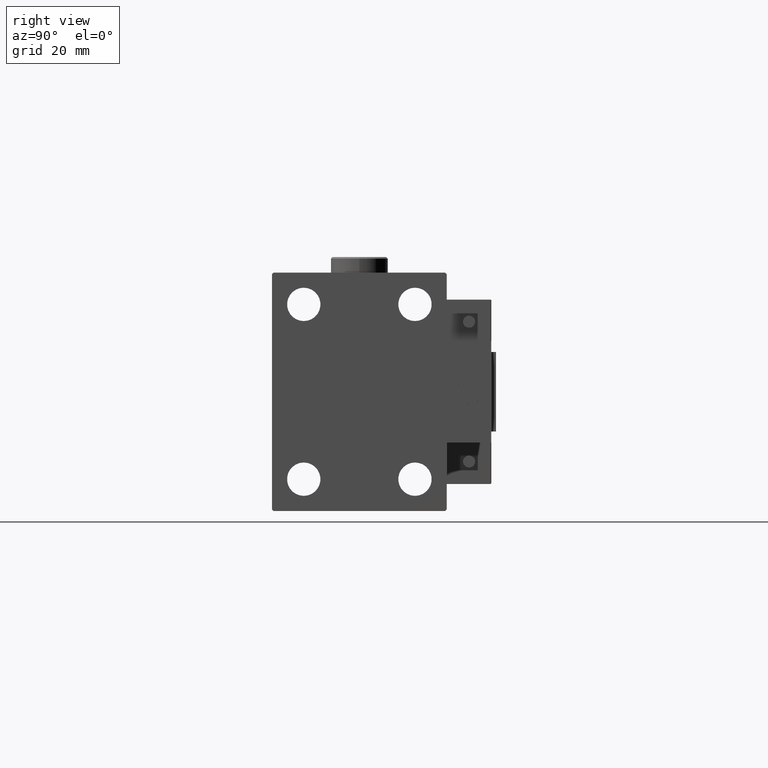
[diagram: clean part render]
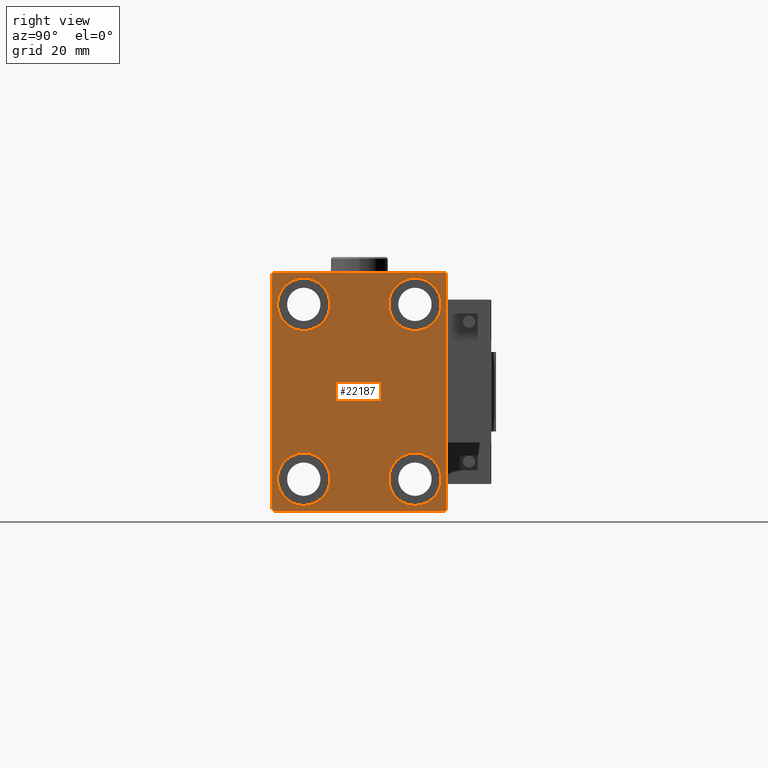
[diagram: same view with one face highlighted and labeled with its STEP entity id]
A machine part, right view. The second image highlights one B-rep face of the part: STEP entity #22187.
In plain terms, the highlighted planar face has unit normal (1, 0, 0).
Its self-contained STEP definition (entity closure, byte-faithful):
#264 = DIRECTION ( 'NONE',  ( -1.000000000000000000, -0.000000000000000000, -0.000000000000000000 ) ) ;
#634 = LINE ( 'NONE', #17320, #4117 ) ;
#788 = EDGE_LOOP ( 'NONE', ( #32483, #24893 ) ) ;
#1033 = VERTEX_POINT ( 'NONE', #39517 ) ;
#1921 = VERTEX_POINT ( 'NONE', #11361 ) ;
#2577 = VECTOR ( 'NONE', #9474, 1000.000000000000114 ) ;
#2788 = ORIENTED_EDGE ( 'NONE', *, *, #23715, .T. ) ;
#3029 = CARTESIAN_POINT ( 'NONE',  ( 105.0000000000000000, 17.49999999999999645, -27.50000000000000355 ) ) ;
#3316 = CARTESIAN_POINT ( 'NONE',  ( 105.0000000000000000, 17.49999999999999645, -19.25000000000000355 ) ) ;
#3392 = VECTOR ( 'NONE', #12245, 1000.000000000000000 ) ;
#3738 = CARTESIAN_POINT ( 'NONE',  ( 105.0000000000000000, -17.50000000000000355, -35.75000000000000711 ) ) ;
#3873 = EDGE_CURVE ( 'NONE', #7758, #50445, #31714, .T. ) ;
#4016 = FACE_OUTER_BOUND ( 'NONE', #49084, .T. ) ;
#4117 = VECTOR ( 'NONE', #14087, 1000.000000000000000 ) ;
#4242 = ORIENTED_EDGE ( 'NONE', *, *, #49967, .T. ) ;
#4422 = CARTESIAN_POINT ( 'NONE',  ( 105.0000000000000000, 17.50000000000000355, 35.74999999999999289 ) ) ;
#4572 = ORIENTED_EDGE ( 'NONE', *, *, #19563, .T. ) ;
#4879 = AXIS2_PLACEMENT_3D ( 'NONE', #41126, #28232, #24208 ) ;
#5010 = ORIENTED_EDGE ( 'NONE', *, *, #21101, .T. ) ;
#6058 = CARTESIAN_POINT ( 'NONE',  ( 105.0000000000000000, 17.49999999999999645, -27.50000000000000355 ) ) ;
#7070 = DIRECTION ( 'NONE',  ( -1.000000000000000000, -0.000000000000000000, -0.000000000000000000 ) ) ;
#7284 = DIRECTION ( 'NONE',  ( -1.000000000000000000, -0.000000000000000000, -0.000000000000000000 ) ) ;
#7758 = VERTEX_POINT ( 'NONE', #16835 ) ;
#7795 = PLANE ( 'NONE',  #4879 ) ;
#8126 = LINE ( 'NONE', #50035, #22632 ) ;
#8431 = CIRCLE ( 'NONE', #52220, 8.250000000000000000 ) ;
#8912 = DIRECTION ( 'NONE',  ( 0.000000000000000000, 1.000000000000000000, 0.000000000000000000 ) ) ;
#9250 = VERTEX_POINT ( 'NONE', #3316 ) ;
#9314 = CARTESIAN_POINT ( 'NONE',  ( 105.0000000000000000, 27.49999999999999645, 37.50000000000000711 ) ) ;
#9474 = DIRECTION ( 'NONE',  ( 0.000000000000000000, -0.7071067811865474617, -0.7071067811865474617 ) ) ;
#9491 = AXIS2_PLACEMENT_3D ( 'NONE', #43740, #27351, #19807 ) ;
#10124 = CARTESIAN_POINT ( 'NONE',  ( 105.0000000000000000, 17.50000000000000355, 27.49999999999999645 ) ) ;
#10790 = DIRECTION ( 'NONE',  ( 0.000000000000000000, 0.000000000000000000, 1.000000000000000000 ) ) ;
#10959 = AXIS2_PLACEMENT_3D ( 'NONE', #6058, #42655, #51233 ) ;
#10997 = ORIENTED_EDGE ( 'NONE', *, *, #3873, .T. ) ;
#11361 = CARTESIAN_POINT ( 'NONE',  ( 105.0000000000000000, 26.99999999999999645, 37.50000000000000711 ) ) ;
#11560 = CARTESIAN_POINT ( 'NONE',  ( 105.0000000000000000, 27.49999999999999645, 37.00000000000001421 ) ) ;
#11806 = CIRCLE ( 'NONE', #10959, 8.250000000000000000 ) ;
#11844 = CARTESIAN_POINT ( 'NONE',  ( 105.0000000000000000, -17.49999999999999645, 27.49999999999999645 ) ) ;
#12245 = DIRECTION ( 'NONE',  ( 0.000000000000000000, 0.000000000000000000, -1.000000000000000000 ) ) ;
#12357 = FACE_BOUND ( 'NONE', #42875, .T. ) ;
#13220 = EDGE_LOOP ( 'NONE', ( #13558, #4572 ) ) ;
#13558 = ORIENTED_EDGE ( 'NONE', *, *, #48207, .T. ) ;
#14087 = DIRECTION ( 'NONE',  ( -0.000000000000000000, -0.7071067811865524577, 0.7071067811865426878 ) ) ;
#14120 = CARTESIAN_POINT ( 'NONE',  ( 105.0000000000000000, -32.25000000000038369, -32.24999999999949551 ) ) ;
#14176 = CIRCLE ( 'NONE', #42511, 8.249999999999992895 ) ;
#15321 = VECTOR ( 'NONE', #30517, 1000.000000000000000 ) ;
#15360 = CARTESIAN_POINT ( 'NONE',  ( 105.0000000000000000, 17.50000000000000355, 27.49999999999999645 ) ) ;
#16428 = DIRECTION ( 'NONE',  ( 0.000000000000000000, 0.000000000000000000, 1.000000000000000000 ) ) ;
#16835 = CARTESIAN_POINT ( 'NONE',  ( 105.0000000000000000, 26.99999999999998934, -37.50000000000000000 ) ) ;
#17320 = CARTESIAN_POINT ( 'NONE',  ( 105.0000000000000000, 32.24999999999981526, 32.25000000000025580 ) ) ;
#17907 = LINE ( 'NONE', #9314, #42703 ) ;
#17979 = AXIS2_PLACEMENT_3D ( 'NONE', #10124, #43197, #51251 ) ;
#19563 = EDGE_CURVE ( 'NONE', #9250, #45723, #11806, .T. ) ;
#19807 = DIRECTION ( 'NONE',  ( 0.000000000000000000, 0.000000000000000000, 1.000000000000000000 ) ) ;
#20196 = ORIENTED_EDGE ( 'NONE', *, *, #22531, .T. ) ;
#20517 = VERTEX_POINT ( 'NONE', #20581 ) ;
#20581 = CARTESIAN_POINT ( 'NONE',  ( 105.0000000000000000, -27.00000000000001776, -37.50000000000000000 ) ) ;
#20661 = VERTEX_POINT ( 'NONE', #42604 ) ;
#20697 = FACE_BOUND ( 'NONE', #788, .T. ) ;
#20715 = DIRECTION ( 'NONE',  ( -1.000000000000000000, -0.000000000000000000, -0.000000000000000000 ) ) ;
#20972 = EDGE_CURVE ( 'NONE', #50445, #42923, #36537, .T. ) ;
#21101 = EDGE_CURVE ( 'NONE', #42667, #40083, #8431, .T. ) ;
#21683 = DIRECTION ( 'NONE',  ( 0.000000000000000000, -1.000000000000000000, -1.261617073437677999E-16 ) ) ;
#22187 = ADVANCED_FACE ( 'NONE', ( #25266, #49974, #20697, #12357, #4016 ), #7795, .T. ) ;
#22531 = EDGE_CURVE ( 'NONE', #1921, #45963, #17907, .T. ) ;
#22632 = VECTOR ( 'NONE', #8912, 1000.000000000000000 ) ;
#22696 = VERTEX_POINT ( 'NONE', #51489 ) ;
#22948 = DIRECTION ( 'NONE',  ( 0.000000000000000000, 0.000000000000000000, 1.000000000000000000 ) ) ;
#23715 = EDGE_CURVE ( 'NONE', #42923, #1921, #634, .T. ) ;
#24208 = DIRECTION ( 'NONE',  ( 0.000000000000000000, 0.000000000000000000, -1.000000000000000000 ) ) ;
#24893 = ORIENTED_EDGE ( 'NONE', *, *, #31138, .T. ) ;
#25266 = FACE_BOUND ( 'NONE', #13220, .T. ) ;
#25428 = VERTEX_POINT ( 'NONE', #34621 ) ;
#26003 = ORIENTED_EDGE ( 'NONE', *, *, #32550, .T. ) ;
#26694 = CIRCLE ( 'NONE', #9491, 8.250000000000000000 ) ;
#26811 = CIRCLE ( 'NONE', #31958, 8.249999999999992895 ) ;
#27351 = DIRECTION ( 'NONE',  ( -1.000000000000000000, -0.000000000000000000, -0.000000000000000000 ) ) ;
#27425 = DIRECTION ( 'NONE',  ( -0.000000000000000000, 0.7071067811865474617, 0.7071067811865474617 ) ) ;
#27665 = CARTESIAN_POINT ( 'NONE',  ( 105.0000000000000000, 17.50000000000000355, 19.25000000000000000 ) ) ;
#28232 = DIRECTION ( 'NONE',  ( 1.000000000000000000, 0.000000000000000000, 0.000000000000000000 ) ) ;
#28357 = EDGE_CURVE ( 'NONE', #20661, #20517, #42368, .T. ) ;
#28513 = DIRECTION ( 'NONE',  ( 0.000000000000000000, 0.000000000000000000, 1.000000000000000000 ) ) ;
#28529 = ORIENTED_EDGE ( 'NONE', *, *, #42814, .T. ) ;
#29774 = CARTESIAN_POINT ( 'NONE',  ( 105.0000000000000000, -17.50000000000000355, -27.50000000000000355 ) ) ;
#29991 = CIRCLE ( 'NONE', #17979, 8.249999999999992895 ) ;
#30404 = AXIS2_PLACEMENT_3D ( 'NONE', #3029, #7070, #22948 ) ;
#30517 = DIRECTION ( 'NONE',  ( -0.000000000000000000, 0.7071067811865378028, -0.7071067811865573427 ) ) ;
#31138 = EDGE_CURVE ( 'NONE', #47890, #51722, #29991, .T. ) ;
#31319 = EDGE_CURVE ( 'NONE', #1033, #20661, #53115, .T. ) ;
#31499 = ORIENTED_EDGE ( 'NONE', *, *, #37239, .T. ) ;
#31714 = LINE ( 'NONE', #48106, #46530 ) ;
#31958 = AXIS2_PLACEMENT_3D ( 'NONE', #48702, #264, #16428 ) ;
#32483 = ORIENTED_EDGE ( 'NONE', *, *, #51398, .T. ) ;
#32550 = EDGE_CURVE ( 'NONE', #45963, #1033, #33951, .T. ) ;
#32688 = CARTESIAN_POINT ( 'NONE',  ( 105.0000000000000000, -27.50000000000000355, 37.50000000000000000 ) ) ;
#33951 = LINE ( 'NONE', #46303, #2577 ) ;
#34621 = CARTESIAN_POINT ( 'NONE',  ( 105.0000000000000000, -17.49999999999999645, 35.74999999999999289 ) ) ;
#36537 = LINE ( 'NONE', #52923, #48770 ) ;
#37239 = EDGE_CURVE ( 'NONE', #40083, #42667, #26694, .T. ) ;
#37317 = CARTESIAN_POINT ( 'NONE',  ( 105.0000000000000000, 27.50000000000000355, -36.99999999999998579 ) ) ;
#38803 = CARTESIAN_POINT ( 'NONE',  ( 105.0000000000000000, -17.50000000000000355, -19.25000000000000355 ) ) ;
#39517 = CARTESIAN_POINT ( 'NONE',  ( 105.0000000000000000, -27.50000000000000355, 37.00000000000000000 ) ) ;
#39867 = CIRCLE ( 'NONE', #30404, 8.250000000000000000 ) ;
#40083 = VERTEX_POINT ( 'NONE', #3738 ) ;
#40141 = EDGE_CURVE ( 'NONE', #25428, #22696, #26811, .T. ) ;
#41126 = CARTESIAN_POINT ( 'NONE',  ( 105.0000000000000000, 0.000000000000000000, 0.000000000000000000 ) ) ;
#42368 = LINE ( 'NONE', #14120, #15321 ) ;
#42511 = AXIS2_PLACEMENT_3D ( 'NONE', #11844, #20715, #28513 ) ;
#42604 = CARTESIAN_POINT ( 'NONE',  ( 105.0000000000000000, -27.50000000000000355, -37.00000000000000000 ) ) ;
#42655 = DIRECTION ( 'NONE',  ( -1.000000000000000000, -0.000000000000000000, -0.000000000000000000 ) ) ;
#42667 = VERTEX_POINT ( 'NONE', #38803 ) ;
#42703 = VECTOR ( 'NONE', #21683, 1000.000000000000000 ) ;
#42814 = EDGE_CURVE ( 'NONE', #20517, #7758, #8126, .T. ) ;
#42875 = EDGE_LOOP ( 'NONE', ( #31499, #5010 ) ) ;
#42923 = VERTEX_POINT ( 'NONE', #11560 ) ;
#43197 = DIRECTION ( 'NONE',  ( -1.000000000000000000, -0.000000000000000000, -0.000000000000000000 ) ) ;
#43571 = ORIENTED_EDGE ( 'NONE', *, *, #40141, .T. ) ;
#43740 = CARTESIAN_POINT ( 'NONE',  ( 105.0000000000000000, -17.50000000000000355, -27.50000000000000355 ) ) ;
#44824 = CARTESIAN_POINT ( 'NONE',  ( 105.0000000000000000, -27.00000000000000355, 37.50000000000000000 ) ) ;
#45385 = DIRECTION ( 'NONE',  ( 0.000000000000000000, 0.000000000000000000, 1.000000000000000000 ) ) ;
#45723 = VERTEX_POINT ( 'NONE', #46195 ) ;
#45963 = VERTEX_POINT ( 'NONE', #44824 ) ;
#46195 = CARTESIAN_POINT ( 'NONE',  ( 105.0000000000000000, 17.49999999999999645, -35.75000000000000711 ) ) ;
#46303 = CARTESIAN_POINT ( 'NONE',  ( 105.0000000000000000, -32.25000000000000000, 32.25000000000000000 ) ) ;
#46530 = VECTOR ( 'NONE', #27425, 1000.000000000000114 ) ;
#47736 = EDGE_LOOP ( 'NONE', ( #4242, #43571 ) ) ;
#47738 = ORIENTED_EDGE ( 'NONE', *, *, #20972, .T. ) ;
#47890 = VERTEX_POINT ( 'NONE', #4422 ) ;
#48106 = CARTESIAN_POINT ( 'NONE',  ( 105.0000000000000000, 32.24999999999999289, -32.24999999999999289 ) ) ;
#48207 = EDGE_CURVE ( 'NONE', #45723, #9250, #39867, .T. ) ;
#48349 = ORIENTED_EDGE ( 'NONE', *, *, #28357, .T. ) ;
#48702 = CARTESIAN_POINT ( 'NONE',  ( 105.0000000000000000, -17.49999999999999645, 27.49999999999999645 ) ) ;
#48770 = VECTOR ( 'NONE', #52128, 1000.000000000000000 ) ;
#49084 = EDGE_LOOP ( 'NONE', ( #20196, #26003, #51234, #48349, #28529, #10997, #47738, #2788 ) ) ;
#49937 = DIRECTION ( 'NONE',  ( -1.000000000000000000, -0.000000000000000000, -0.000000000000000000 ) ) ;
#49967 = EDGE_CURVE ( 'NONE', #22696, #25428, #14176, .T. ) ;
#49974 = FACE_BOUND ( 'NONE', #47736, .T. ) ;
#50035 = CARTESIAN_POINT ( 'NONE',  ( 105.0000000000000000, -27.50000000000000355, -37.50000000000000000 ) ) ;
#50284 = AXIS2_PLACEMENT_3D ( 'NONE', #15360, #7284, #10790 ) ;
#50445 = VERTEX_POINT ( 'NONE', #37317 ) ;
#51233 = DIRECTION ( 'NONE',  ( 0.000000000000000000, 0.000000000000000000, 1.000000000000000000 ) ) ;
#51234 = ORIENTED_EDGE ( 'NONE', *, *, #31319, .T. ) ;
#51251 = DIRECTION ( 'NONE',  ( 0.000000000000000000, 0.000000000000000000, 1.000000000000000000 ) ) ;
#51398 = EDGE_CURVE ( 'NONE', #51722, #47890, #52867, .T. ) ;
#51489 = CARTESIAN_POINT ( 'NONE',  ( 105.0000000000000000, -17.49999999999999645, 19.25000000000000000 ) ) ;
#51722 = VERTEX_POINT ( 'NONE', #27665 ) ;
#52128 = DIRECTION ( 'NONE',  ( 0.000000000000000000, -9.251858538542970348E-17, 1.000000000000000000 ) ) ;
#52220 = AXIS2_PLACEMENT_3D ( 'NONE', #29774, #49937, #45385 ) ;
#52867 = CIRCLE ( 'NONE', #50284, 8.249999999999992895 ) ;
#52923 = CARTESIAN_POINT ( 'NONE',  ( 105.0000000000000000, 27.50000000000000355, -37.50000000000000000 ) ) ;
#53115 = LINE ( 'NONE', #32688, #3392 ) ;